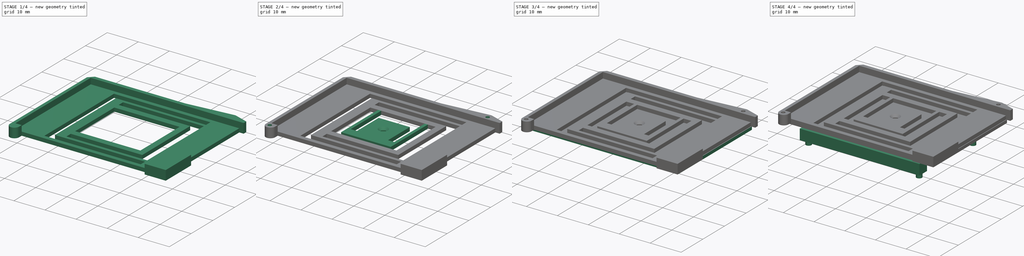
[diagram: build sequence overview — one tinted view per stage of 4, left to right]
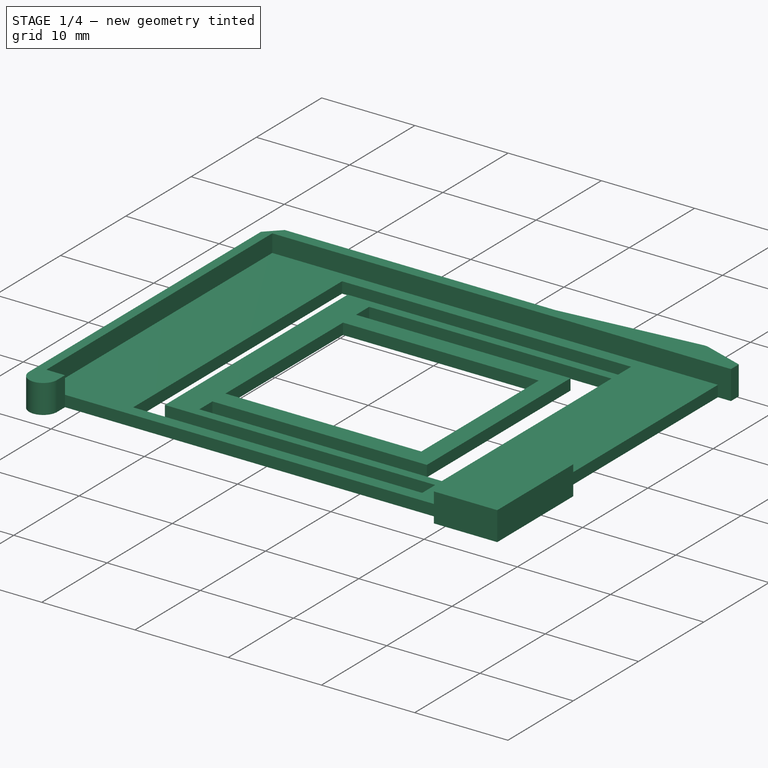
[diagram: stage 1 of 4 — iso view after this stage's code; geometry added in this stage tinted green]
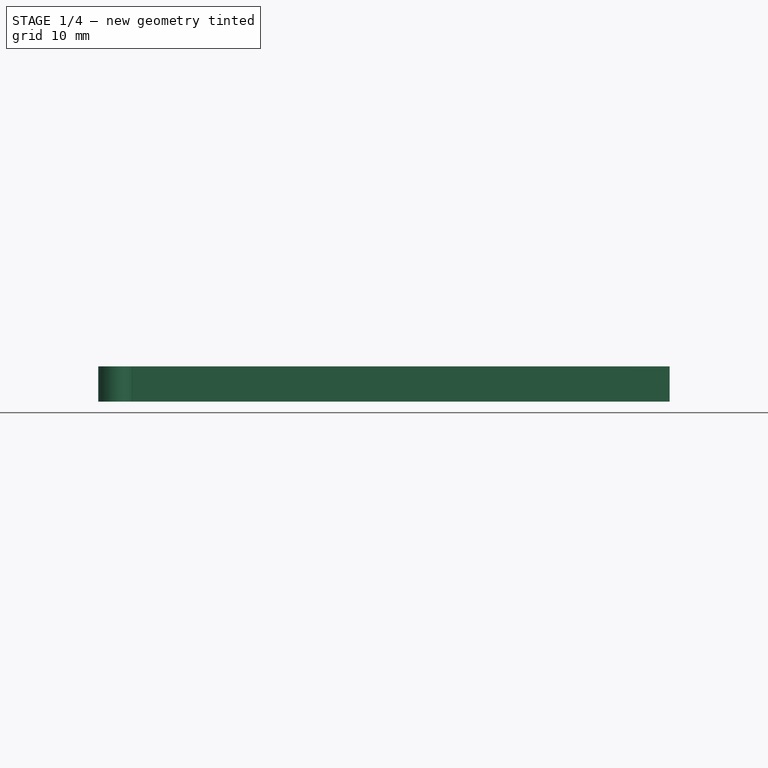
[diagram: stage 1 of 4 — front view after this stage's code; geometry added in this stage tinted green]
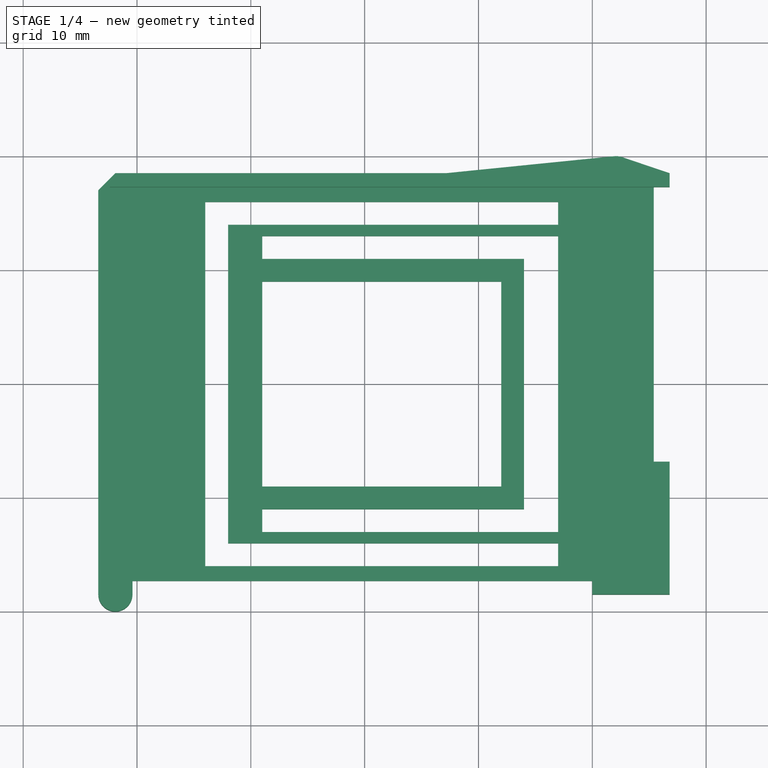
[diagram: stage 1 of 4 — top view after this stage's code; geometry added in this stage tinted green]
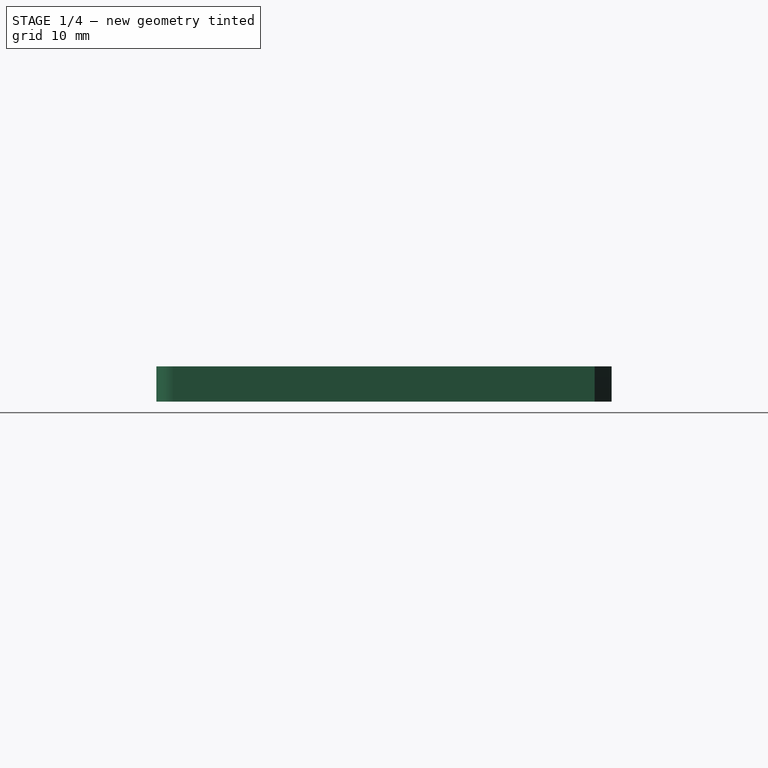
[diagram: stage 1 of 4 — right view after this stage's code; geometry added in this stage tinted green]
FCSTD DOCUMENT  (FreeCAD 0.21R33668 +26 (Git))
Label: PLASTIC-TEK1-DISPLAY-INTERFACE_v4
License: All rights reserved
LicenseURL: https://en.wikipedia.org/wiki/All_rights_reserved
objects: Sketcher::SketchObject×15, PartDesign::Pad×10, PartDesign::Plane×3, PartDesign::Pocket×3, PartDesign::Body×3, PartDesign::Hole×1
note: 49 computed .brp shape members not serialized (recipe doc carries the construction recipe); baked Part::Feature solids carry a one-line shape summary decoded from their .brp

FEATURE [PartDesign::Plane] DatumPlane002
  AttachmentOffset = pos=(0,0,5.9) rot=(0,0,1;0rad)
  Length = 61.9784
  MapMode = 5
  Placement = pos=(0,0,5.9) rot=(0,0,1;0rad)
  ResizeMode = 0
  Support = -> [XY_Plane001]
  Width = 60.1784
FEATURE [Sketcher::SketchObject] Sketch005
  FullyConstrained = true
  MapMode = 5
  Placement = pos=(0,0,5.9) rot=(0,0,1;0rad)
  Support = -> [DatumPlane002]
  sketch-geometry (6):
    g0: LineSegment StartX=-14 StartY=-16 StartZ=0 EndX=-14 EndY=16 EndZ=0
    g1: LineSegment StartX=-14 StartY=16 StartZ=0 EndX=17 EndY=16 EndZ=0
    g2: LineSegment StartX=17 StartY=16 StartZ=0 EndX=17 EndY=-16 EndZ=0
    g3: LineSegment StartX=17 StartY=-16 StartZ=0 EndX=-14 EndY=-16 EndZ=0
    g4: LineSegment StartX=-14 StartY=0 StartZ=0 EndX=17 EndY=0 EndZ=0
    g5: GeomPoint X=1.5 Y=0 Z=0
  constraints (16):
    c: Coincident(g0,g1)
    c: Coincident(g1,g2)
    c: Coincident(g2,g3)
    c: Coincident(g3,g0)
    c: Horizontal(g1)
    c: Horizontal(g3)
    c: Vertical(g0)
    c: DistanceX(g1,g1) = 31
    c: DistanceY(g2,g2) = 32
    c: Symmetric(g1,g2,g-1)
    c: PointOnObject(g4,g0)
    c: PointOnObject(g4,g2)
    c: Horizontal(g4)
    c: PointOnObject(g4,g-1)
    c: Symmetric(g4,g4,g5)
    c: DistanceX(g-1,g5) = 1.5
FEATURE [Sketcher::SketchObject] Sketch007
  FullyConstrained = true
  MapMode = 5
  Placement = pos=(0,0,5.9) rot=(0,0,1;0rad)
  Support = -> [DatumPlane002]
  sketch-geometry (10):
    g0: LineSegment StartX=-22.4 StartY=-17.3 StartZ=0 EndX=-22.4 EndY=17.3 EndZ=0
    g1: LineSegment StartX=-22.4 StartY=17.3 StartZ=0 EndX=25.4 EndY=17.3 EndZ=0
    g2: LineSegment StartX=25.4 StartY=17.3 StartZ=0 EndX=25.4 EndY=-17.3 EndZ=0
    g3: LineSegment StartX=25.4 StartY=-17.3 StartZ=0 EndX=-22.4 EndY=-17.3 EndZ=0
    g4: GeomPoint X=1.5 Y=0 Z=0
    g5: LineSegment StartX=-20.4 StartY=-15.3 StartZ=0 EndX=-20.4 EndY=15.3 EndZ=0
    g6: LineSegment StartX=-20.4 StartY=15.3 StartZ=0 EndX=20.4 EndY=15.3 EndZ=0
    g7: LineSegment StartX=20.4 StartY=15.3 StartZ=0 EndX=20.4 EndY=-15.3 EndZ=0
    g8: LineSegment StartX=20.4 StartY=-15.3 StartZ=0 EndX=-20.4 EndY=-15.3 EndZ=0
    g9: GeomPoint X=0 Y=0 Z=0
  constraints (25):
    c: Coincident(g0,g1)
    c: Coincident(g1,g2)
    c: Coincident(g2,g3)
    c: Coincident(g3,g0)
    c: Horizontal(g1)
    c: Horizontal(g3)
    c: Vertical(g0)
    c: Vertical(g2)
    c: Symmetric(g1,g0,g4)
    c: PointOnObject(g4,g-1)
    c: DistanceY(g0,g0) = 34.6
    c: Coincident(g5,g6)
    c: Coincident(g6,g7)
    c: Coincident(g7,g8)
    c: Coincident(g8,g5)
    c: Horizontal(g6)
    c: Horizontal(g8)
    c: Vertical(g5)
    c: Vertical(g7)
    c: Symmetric(g6,g5,g9)
    c: DistanceX(g6,g6) = 40.8
    c: DistanceY(g7,g7) = 30.6
    c: Coincident(g9,g-1)
    c: DistanceX(g0,g9) = 22.4
    c: DistanceX(g9,g2) = 25.4
FEATURE [PartDesign::Pad] Pad005
  Direction = (0,0,1)
  Length = 1.2
  Length2 = 10
  Placement = pos=(0,0,5.9) rot=(0,0,1;0rad)
  Profile = -> Sketch007
  ReferenceAxis = -> Sketch007 [N_Axis]
  Type = 0
FEATURE [Sketcher::SketchObject] Sketch008
  FullyConstrained = true
  MapMode = 5
  Placement = pos=(0,0,5.9) rot=(0,0,1;0rad)
  Support = -> [DatumPlane002]
  sketch-geometry (39):
    g0: LineSegment StartX=-22.4 StartY=-17.3 StartZ=0 EndX=-22.4 EndY=17.3 EndZ=0
    g1: LineSegment StartX=-22.4 StartY=17.3 StartZ=0 EndX=-17.7 EndY=17.3 EndZ=0
    g2: GeomPoint X=1.5 Y=0 Z=0
    g3: LineSegment StartX=-23.4 StartY=-18.5 StartZ=0 EndX=-23.4 EndY=17 EndZ=0
    g4: LineSegment StartX=-21.9 StartY=18.5 StartZ=0 EndX=7.15 EndY=18.5 EndZ=0
    g5: LineSegment StartX=26.8 StartY=18.5 StartZ=0 EndX=26.8 EndY=17.3 EndZ=0
    g6: GeomPoint X=1.5 Y=0 Z=0
    g7: Circle CenterX=22.1 CenterY=18.5 CenterZ=0 NormalX=0 NormalY=0 NormalZ=1 AngleXU=0 Radius=0.75
    g8: LineSegment StartX=21.9495 StartY=19.9924 StartZ=0 EndX=7.15 EndY=18.5 EndZ=0
    g9: LineSegment StartX=22.5787 StartY=19.9216 StartZ=0 EndX=26.8 EndY=18.5 EndZ=0
    g10: ArcOfCircle CenterX=22.1 CenterY=18.5 CenterZ=0 NormalX=0 NormalY=0 NormalZ=1 AngleXU=0 Radius=1.5 StartAngle=1.24597 EndAngle=1.6713
    g11: LineSegment StartX=-22.4 StartY=-17.3 StartZ=0 EndX=-21.7 EndY=-17.3 EndZ=0
    g12: LineSegment StartX=-23.4 StartY=17 StartZ=0 EndX=-21.9 EndY=18.5 EndZ=0
    g13: LineSegment StartX=20 StartY=-17.3 StartZ=0 EndX=20 EndY=-18.5 EndZ=0
    g14: LineSegment StartX=20 StartY=-18.5 StartZ=0 EndX=26.8 EndY=-18.5 EndZ=0
    g15: LineSegment StartX=20 StartY=-17.3 StartZ=0 EndX=20 EndY=-18.5 EndZ=0
    g16: LineSegment StartX=20 StartY=-17.3 StartZ=0 EndX=21.3 EndY=-17.3 EndZ=0
    g17: ArcOfCircle CenterX=-17.5 CenterY=17.3 CenterZ=0 NormalX=0 NormalY=0 NormalZ=1 AngleXU=0 Radius=0.2 StartAngle=3.14159 EndAngle=6.28319
    g18: ArcOfCircle CenterX=17.5 CenterY=17.3 CenterZ=0 NormalX=0 NormalY=0 NormalZ=1 AngleXU=0 Radius=0.2 StartAngle=3.14159 EndAngle=6.28319
    g19: ArcOfCircle CenterX=21.5 CenterY=-17.3 CenterZ=0 NormalX=0 NormalY=0 NormalZ=1 AngleXU=0 Radius=0.2 StartAngle=3.8e-15 EndAngle=3.14159
    g20: ArcOfCircle CenterX=-21.5 CenterY=-17.3 CenterZ=0 NormalX=0 NormalY=0 NormalZ=1 AngleXU=0 Radius=0.2 StartAngle=4.4e-15 EndAngle=3.14159
    g21: LineSegment StartX=21.7 StartY=-17.3 StartZ=0 EndX=25.4 EndY=-17.3 EndZ=0
    g22: LineSegment StartX=-21.3 StartY=-17.3 StartZ=0 EndX=-20.4 EndY=-17.3 EndZ=0
    g23: LineSegment StartX=-17.3 StartY=17.3 StartZ=0 EndX=17.3 EndY=17.3 EndZ=0
    g24: LineSegment StartX=17.7 StartY=17.3 StartZ=0 EndX=25.4 EndY=17.3 EndZ=0
    g25: Circle CenterX=-21.9 CenterY=-18.5 CenterZ=0 NormalX=0 NormalY=0 NormalZ=1 AngleXU=0 Radius=0.75
    g26: ArcOfCircle CenterX=-21.9 CenterY=-18.5 CenterZ=0 NormalX=0 NormalY=0 NormalZ=1 AngleXU=0 Radius=1.5 StartAngle=3.14159 EndAngle=6.28319
    g27: LineSegment StartX=-20.4 StartY=-18.5 StartZ=0 EndX=-20.4 EndY=-17.3 EndZ=0
    g28: LineSegment StartX=-21.7 StartY=-17.3 StartZ=0 EndX=-21.3 EndY=-17.3 EndZ=0
    g29: LineSegment StartX=-17.7 StartY=17.3 StartZ=0 EndX=-17.3 EndY=17.3 EndZ=0
    g30: LineSegment StartX=17.3 StartY=17.3 StartZ=0 EndX=17.7 EndY=17.3 EndZ=0
    g31: LineSegment StartX=21.3 StartY=-17.3 StartZ=0 EndX=21.7 EndY=-17.3 EndZ=0
    g32: LineSegment StartX=-22.4 StartY=0 StartZ=0 EndX=25.4 EndY=0 EndZ=0
    g33: LineSegment StartX=25.4 StartY=17.3 StartZ=0 EndX=26.8 EndY=17.3 EndZ=0
    g34: LineSegment StartX=25.4 StartY=17.3 StartZ=0 EndX=25.4 EndY=-17.3 EndZ=0
    g35: LineSegment StartX=26.8 StartY=17.3 StartZ=0 EndX=26.8 EndY=-18.5 EndZ=0
    g36: LineSegment StartX=25.4 StartY=-17.3 StartZ=0 EndX=25.4 EndY=-6.85 EndZ=0
    g37: LineSegment StartX=25.4 StartY=-6.85 StartZ=0 EndX=26.8 EndY=-6.85 EndZ=0
    g38: LineSegment StartX=26.8 StartY=-6.85 StartZ=0 EndX=26.8 EndY=-18.5 EndZ=0
  constraints (104):
    c: Coincident(g0,g1)
    c: Horizontal(g1)
    c: Vertical(g0)
    c: Symmetric(g24,g0,g2)
    c: PointOnObject(g2,g-1)
    c: DistanceX(g0,g-1) = 22.4
    c: DistanceY(g0,g0) = 34.6
    c: DistanceX(g1,g24) = 47.8
    c: Horizontal(g4)
    c: Vertical(g3)
    c: Coincident(g6,g2)
    c: DistanceX(g3,g0) = 1
    c: DistanceY(g3,g0) = 1.2
    c: DistanceY(g14,g5) = 37
    c: Symmetric(g5,g14,g-1)
    c: DistanceX(g-1,g7) = 22.1
    c: DistanceY(g24,g7) = 1.2
    c: Coincident(g4,g8)
    c: Coincident(g9,g5)
    c: Tangent(g10,g9) = 1.5708
    c: Tangent(g10,g8) = -1.5708
    c: Coincident(g10,g7)
    c: Coincident(g11,g0)
    c: Horizontal(g11)
    c: Coincident(g3,g12)
    c: DistanceX(g3,g4) = 30.55
    c: DistanceX(g3,g5) = 50.2
    c: Coincident(g4,g12)
    c: Angle(g12,g4) = 2.35619
    c: DistanceX(g3,g4) = 1.5
    c: DistanceX(g-1,g13) = 20
    c: Vertical(g13)
    c: Coincident(g14,g13)
    c: Coincident(g15,g13)
    c: Coincident(g15,g14)
    c: Coincident(g16,g13)
    c: Horizontal(g16)
    c: PointOnObject(g17,g1)
    c: PointOnObject(g19,g16)
    c: Equal(g20,g19)
    c: Equal(g19,g18)
    c: Equal(g18,g17)
    c: Diameter(g17) = 0.4
    c: Symmetric(g17,g18,g-2)
    c: DistanceX(g17,g18) = 35
    c: Symmetric(g20,g19,g-2)
    c: DistanceX(g20,g19) = 43
    c: Coincident(g16,g19)
    c: Coincident(g21,g19)
    c: Coincident(g11,g20)
    c: Coincident(g22,g20)
    c: Coincident(g1,g17)
    c: Coincident(g23,g17)
    c: Coincident(g23,g18)
    c: Coincident(g24,g18)
    c: Horizontal(g22)
    c: Horizontal(g20,g11)
    c: Horizontal(g21)
    c: Horizontal(g24)
    c: Horizontal(g18,g18)
    c: Horizontal(g23)
    c: Horizontal(g18,g18)
    c: Horizontal(g16,g19)
    c: Coincident(g26,g25)
    c: Equal(g25,g7)
    c: Equal(g26,g10)
    c: Diameter(g26) = 3
    c: Diameter(g25) = 1.5
    c: Tangent(g26,g3) = 1.5708
    c: Vertical(g27)
    c: Tangent(g26,g27) = -1.5708
    c: Coincident(g22,g27)
    c: Horizontal(g20,g20)
    c: Horizontal(g14)
    c: DistanceY(g22,g3) = 34.3
    c: Coincident(g28,g11)
    c: Coincident(g28,g22)
    c: Coincident(g29,g1)
    c: Coincident(g29,g17)
    c: Coincident(g30,g18)
    c: Coincident(g30,g18)
    c: Coincident(g31,g16)
    c: Coincident(g31,g19)
    c: PointOnObject(g32,g0)
    c: Horizontal(g32)
    c: PointOnObject(g32,g-1)
    c: Coincident(g33,g24)
    c: Horizontal(g33)
    c: Coincident(g5,g33)
    c: Coincident(g34,g24)
    c: Coincident(g34,g21)
    c: Vertical(g34)
    c: Coincident(g35,g5)
    c: Vertical(g35)
    c: PointOnObject(g32,g34)
    c: Coincident(g36,g21)
    c: PointOnObject(g36,g34)
    c: Coincident(g37,g36)
    c: PointOnObject(g37,g35)
    c: Horizontal(g37)
    c: Coincident(g38,g37)
    c: Coincident(g38,g14)
    c: DistanceY(g38,g38) = 11.65
    c: Coincident(g35,g14)
FEATURE [PartDesign::Pad] Pad006
  BaseFeature = -> Pad005
  Direction = (0,0,1)
  Length = 3.1
  Length2 = 10
  Placement = pos=(0,0,5.9) rot=(0,0,1;0rad)
  Profile = -> Sketch008
  ReferenceAxis = -> Sketch008 [N_Axis]
  Refine = true
  Type = 0
FEATURE [Sketcher::SketchObject] Sketch009
  FullyConstrained = true
  MapMode = 5
  Placement = pos=(0,0,5.9) rot=(0,0,1;0rad)
  Support = -> [DatumPlane002]
  sketch-geometry (13):
    g0: LineSegment StartX=19.6 StartY=-3.15 StartZ=0 EndX=19.6 EndY=10.8 EndZ=0
    g1: LineSegment StartX=22.1 StartY=13.3 StartZ=0 EndX=26.6 EndY=13.3 EndZ=0
    g2: LineSegment StartX=26.6 StartY=13.3 StartZ=0 EndX=26.6 EndY=-5.65 EndZ=0
    g3: LineSegment StartX=26.6 StartY=-5.65 StartZ=0 EndX=22.1 EndY=-5.65 EndZ=0
    g4: GeomPoint X=26.6 Y=17.3 Z=0
    g5: ArcOfCircle CenterX=22.1 CenterY=-3.15 CenterZ=0 NormalX=0 NormalY=0 NormalZ=1 AngleXU=0 Radius=2.5 StartAngle=3.14159 EndAngle=4.71239
    g6: ArcOfCircle CenterX=22.1 CenterY=10.8 CenterZ=0 NormalX=0 NormalY=0 NormalZ=1 AngleXU=0 Radius=2.5 StartAngle=1.5708 EndAngle=3.14159
    g7: LineSegment StartX=-23.6 StartY=9.475 StartZ=0 EndX=-19.1 EndY=9.475 EndZ=0
    g8: LineSegment StartX=-16.6 StartY=6.975 StartZ=0 EndX=-16.6 EndY=-6.975 EndZ=0
    g9: LineSegment StartX=-19.1 StartY=-9.475 StartZ=0 EndX=-23.6 EndY=-9.475 EndZ=0
    g10: LineSegment StartX=-23.6 StartY=-9.475 StartZ=0 EndX=-23.6 EndY=9.475 EndZ=0
    g11: ArcOfCircle CenterX=-19.1 CenterY=6.975 CenterZ=0 NormalX=0 NormalY=0 NormalZ=1 AngleXU=0 Radius=2.5 StartAngle=0 EndAngle=1.5708
    g12: ArcOfCircle CenterX=-19.1 CenterY=-6.975 CenterZ=0 NormalX=0 NormalY=0 NormalZ=1 AngleXU=0 Radius=2.5 StartAngle=4.71239 EndAngle=6.28319
  constraints (33):
    c: Coincident(g1,g2)
    c: Coincident(g2,g3)
    c: Horizontal(g1)
    c: Horizontal(g3)
    c: Vertical(g0)
    c: Vertical(g2)
    c: DistanceX(g-1,g4) = 26.6
    c: DistanceY(g-1,g4) = 17.3
    c: DistanceY(g1,g4) = 4
    c: Vertical(g1,g4)
    c: Tangent(g0,g5) = 1.5708
    c: Tangent(g3,g5) = 1.5708
    c: Tangent(g0,g6) = 1.5708
    c: Tangent(g1,g6) = 1.5708
    c: DistanceY(g3,g-1) = 5.65
    c: Equal(g5,g6)
    c: DistanceX(g0,g2) = 7
    c: Diameter(g5) = 5
    c: Coincident(g9,g10)
    c: Coincident(g10,g7)
    c: Horizontal(g7)
    c: Horizontal(g9)
    c: Vertical(g8)
    c: DistanceX(g9,g-1) = 23.6
    c: Symmetric(g9,g7,g-1)
    c: Tangent(g7,g11) = 1.5708
    c: Tangent(g8,g11) = 1.5708
    c: Tangent(g8,g12) = 1.5708
    c: Tangent(g9,g12) = 1.5708
    c: Equal(g11,g12)
    c: Diameter(g11) = 5
    c: DistanceX(g7,g8) = 7
    c: DistanceY(g10,g10) = 18.95
FEATURE [PartDesign::Pocket] Pocket002
  BaseFeature = -> Pad006
  Direction = (0,0,-1)
  Length = 5
  Length2 = 5
  Placement = pos=(0,0,5.9) rot=(0,0,1;0rad)
  Profile = -> Sketch005
  ReferenceAxis = -> Sketch005 [N_Axis]
  Reversed = true
  Type = 0
FEATURE [PartDesign::Plane] DatumPlane
  AttachmentOffset = pos=(0,0,7.1) rot=(0,0,1;0rad)
  Length = 61.9784
  MapMode = 5
  Placement = pos=(0,0,7.1) rot=(0,0,1;0rad)
  ResizeMode = 0
  Support = -> [XY_Plane001]
  Width = 60.1784
FEATURE [Sketcher::SketchObject] Sketch013
  FullyConstrained = true
  MapMode = 5
  Placement = pos=(0,0,7.1) rot=(0,0,1;0rad)
  Support = -> [DatumPlane]
  sketch-geometry (4):
    g0: Circle CenterX=22.1 CenterY=18.5 CenterZ=0 NormalX=0 NormalY=0 NormalZ=1 AngleXU=0 Radius=0.6
    g1: Circle CenterX=-22.1 CenterY=-18.5 CenterZ=0 NormalX=0 NormalY=0 NormalZ=1 AngleXU=0 Radius=0.6
    g2: LineSegment StartX=-22.1 StartY=-18.5 StartZ=0 EndX=-22.1 EndY=0 EndZ=0
    g3: LineSegment StartX=22.1 StartY=18.5 StartZ=0 EndX=22.1 EndY=0 EndZ=0
  constraints (12):
    c: Diameter(g0) = 1.2
    c: Equal(g1,g0)
    c: Coincident(g2,g1)
    c: PointOnObject(g2,g-1)
    c: Vertical(g2)
    c: Coincident(g3,g0)
    c: PointOnObject(g3,g-1)
    c: Vertical(g3)
    c: Equal(g2,g3)
    c: DistanceY(g3,g3) = 18.5
    c: DistanceX(g-1,g3) = 22.1
    c: DistanceX(g2,g-1) = 22.1
FEATURE [Sketcher::SketchObject] Sketch020
  FullyConstrained = true
  MapMode = 5
  Placement = pos=(0,0,5.9) rot=(0,0,1;0rad)
  Support = -> [DatumPlane002]
  sketch-geometry (13):
    g0: LineSegment StartX=-3.5 StartY=-5 StartZ=0 EndX=-3.5 EndY=5 EndZ=0
    g1: LineSegment StartX=-3.5 StartY=5 StartZ=0 EndX=6.5 EndY=5 EndZ=0
    g2: LineSegment StartX=6.5 StartY=5 StartZ=0 EndX=6.5 EndY=-5 EndZ=0
    g3: LineSegment StartX=8.5 StartY=-5 StartZ=0 EndX=6.5 EndY=-5 EndZ=0
    g4: LineSegment StartX=-5.5 StartY=-5 StartZ=0 EndX=-3.5 EndY=-5 EndZ=0
    g5: LineSegment StartX=-6.5 StartY=10 StartZ=0 EndX=-5.5 EndY=10 EndZ=0
    g6: LineSegment StartX=-5.5 StartY=10 StartZ=0 EndX=-5.5 EndY=-5 EndZ=0
    g7: LineSegment StartX=-6.5 StartY=-8 StartZ=0 EndX=-6.5 EndY=10 EndZ=0
    g8: LineSegment StartX=9.5 StartY=10 StartZ=0 EndX=8.5 EndY=10 EndZ=0
    g9: LineSegment StartX=8.5 StartY=10 StartZ=0 EndX=8.5 EndY=-5 EndZ=0
    g10: LineSegment StartX=9.5 StartY=-8 StartZ=0 EndX=9.5 EndY=10 EndZ=0
    g11: LineSegment StartX=-6.5 StartY=-8 StartZ=0 EndX=9.5 EndY=-8 EndZ=0
    g12: LineSegment StartX=1.5 StartY=-8 StartZ=0 EndX=1.5 EndY=10 EndZ=0
  constraints (37):
    c: Coincident(g0,g1)
    c: Coincident(g1,g2)
    c: Vertical(g0)
    c: Horizontal(g3)
    c: Horizontal(g4)
    c: Coincident(g5,g6)
    c: Coincident(g7,g5)
    c: Horizontal(g5)
    c: Vertical(g6)
    c: Vertical(g7)
    c: Coincident(g8,g9)
    c: Coincident(g10,g8)
    c: Horizontal(g8)
    c: Vertical(g9)
    c: Vertical(g10)
    c: Equal(g5,g8)
    c: DistanceX(g8,g8) = 1
    c: Coincident(g3,g9)
    c: Coincident(g3,g2)
    c: Coincident(g4,g6)
    c: Coincident(g4,g0)
    c: Coincident(g11,g7)
    c: Coincident(g11,g10)
    c: Horizontal(g11)
    c: DistanceX(g1,g1) = 10
    c: DistanceY(g10,g3) = 3
    c: Horizontal(g2,g0)
    c: DistanceY(g2,g2) = 10
    c: Symmetric(g2,g1,g-1)
    c: DistanceX(g3,g3) = 2
    c: DistanceY(g10,g10) = 18
    c: Horizontal(g12,g8)
    c: Symmetric(g5,g8,g12)
    c: Symmetric(g7,g10,g12)
    c: Equal(g4,g3)
    c: DistanceX(g-1,g12) = 1.5
    c: Horizontal(g1)
FEATURE [Sketcher::SketchObject] Sketch
  FullyConstrained = true
  MapMode = 5
  Support = -> [XY_Plane002]
  sketch-geometry (4):
    g0: Circle CenterX=-18 CenterY=12.5 CenterZ=0 NormalX=0 NormalY=0 NormalZ=1 AngleXU=0 Radius=0.9
    g1: Circle CenterX=-18 CenterY=-12.5 CenterZ=0 NormalX=0 NormalY=0 NormalZ=1 AngleXU=0 Radius=0.9
    g2: Circle CenterX=18 CenterY=-12.5 CenterZ=0 NormalX=0 NormalY=0 NormalZ=1 AngleXU=0 Radius=0.9
    g3: Circle CenterX=18 CenterY=12.5 CenterZ=0 NormalX=0 NormalY=0 NormalZ=1 AngleXU=0 Radius=0.9
  constraints (10):
    c: Symmetric(g0,g1,g-1)
    c: Equal(g2,g1)
    c: Diameter(g0) = 1.8
    c: DistanceY(g1,g0) = 25
    c: DistanceX(g1,g2) = 36
    c: Symmetric(g1,g2,g-2)
    c: Equal(g0,g1)
    c: Horizontal(g3,g0)
    c: Vertical(g3,g2)
    c: Equal(g3,g0)
FEATURE [Sketcher::SketchObject] Sketch023
  FullyConstrained = true
  MapMode = 5
  Placement = pos=(0,0,5.9) rot=(0,0,1;0rad)
  Support = -> [DatumPlane002]
  sketch-geometry (25):
    g0: LineSegment StartX=-12 StartY=-14 StartZ=0 EndX=-12 EndY=14 EndZ=0
    g1: LineSegment StartX=-12 StartY=14 StartZ=0 EndX=-9 EndY=14 EndZ=0
    g2: LineSegment StartX=-9 StartY=-14 StartZ=0 EndX=-12 EndY=-14 EndZ=0
    g3: GeomPoint X=-10.5 Y=0 Z=0
    g4: LineSegment StartX=-9 StartY=-14 StartZ=0 EndX=17 EndY=-14 EndZ=0
    g5: LineSegment StartX=17 StartY=-14 StartZ=0 EndX=17 EndY=-13 EndZ=0
    g6: LineSegment StartX=17 StartY=-13 StartZ=0 EndX=-9 EndY=-13 EndZ=0
    g7: LineSegment StartX=-9 StartY=13 StartZ=0 EndX=17 EndY=13 EndZ=0
    g8: LineSegment StartX=17 StartY=13 StartZ=0 EndX=17 EndY=14 EndZ=0
    g9: LineSegment StartX=17 StartY=14 StartZ=0 EndX=-9 EndY=14 EndZ=0
    g10: LineSegment StartX=-9 StartY=-11 StartZ=0 EndX=14 EndY=-11 EndZ=0
    g11: LineSegment StartX=14 StartY=-11 StartZ=0 EndX=14 EndY=11 EndZ=0
    g12: LineSegment StartX=14 StartY=11 StartZ=0 EndX=-9 EndY=11 EndZ=0
    g13: LineSegment StartX=-9 StartY=9 StartZ=0 EndX=-9 EndY=-9 EndZ=0
    g14: LineSegment StartX=-9 StartY=-9 StartZ=0 EndX=12 EndY=-9 EndZ=0
    g15: LineSegment StartX=12 StartY=-9 StartZ=0 EndX=12 EndY=9 EndZ=0
    g16: LineSegment StartX=12 StartY=9 StartZ=0 EndX=-9 EndY=9 EndZ=0
    g17: LineSegment StartX=-14 StartY=-17.5 StartZ=0 EndX=-14 EndY=17.5 EndZ=0
    g18: LineSegment StartX=-14 StartY=17.5 StartZ=0 EndX=17 EndY=17.5 EndZ=0
    g19: LineSegment StartX=17 StartY=17.5 StartZ=0 EndX=17 EndY=-17.5 EndZ=0
    g20: LineSegment StartX=17 StartY=-17.5 StartZ=0 EndX=-14 EndY=-17.5 EndZ=0
    g21: LineSegment StartX=-9 StartY=-11 StartZ=0 EndX=-9 EndY=-13 EndZ=0
    g22: LineSegment StartX=-9 StartY=13 StartZ=0 EndX=-9 EndY=11 EndZ=0
    g23: LineSegment StartX=-9 StartY=0 StartZ=0 EndX=12 EndY=0 EndZ=0
    g24: GeomPoint X=1.5 Y=0 Z=0
  constraints (69):
    c: Coincident(g0,g1)
    c: Coincident(g2,g0)
    c: Horizontal(g1)
    c: Horizontal(g2)
    c: Vertical(g0)
    c: Symmetric(g1,g0,g3)
    c: PointOnObject(g3,g-1)
    c: Coincident(g4,g5)
    c: Coincident(g5,g6)
    c: Horizontal(g4)
    c: Horizontal(g6)
    c: Vertical(g5)
    c: Coincident(g7,g8)
    c: Coincident(g8,g9)
    c: Horizontal(g7)
    c: Horizontal(g9)
    c: Vertical(g8)
    c: Coincident(g10,g11)
    c: Coincident(g11,g12)
    c: Horizontal(g10)
    c: Horizontal(g12)
    c: Vertical(g13)
    c: Coincident(g14,g15)
    c: Coincident(g15,g16)
    c: Horizontal(g14)
    c: Horizontal(g16)
    c: DistanceX(g1,g1) = 3
    c: Coincident(g17,g18)
    c: Coincident(g18,g19)
    c: Coincident(g19,g20)
    c: Coincident(g20,g17)
    c: Horizontal(g18)
    c: Horizontal(g20)
    c: Vertical(g19)
    c: DistanceY(g17,g17) = 35
    c: DistanceX(g18,g18) = 31
    c: PointOnObject(g8,g19)
    c: PointOnObject(g4,g19)
    c: Equal(g5,g8)
    c: Coincident(g21,g10)
    c: Coincident(g22,g7)
    c: Symmetric(g15,g14,g-1)
    c: Symmetric(g10,g11,g-1)
    c: Coincident(g13,g16)
    c: Coincident(g13,g14)
    c: DistanceY(g8,g8) = 1
    c: Coincident(g4,g2)
    c: Coincident(g9,g1)
    c: Vertical(g10,g13)
    c: Coincident(g12,g22)
    c: Vertical(g22)
    c: Vertical(g13,g12)
    c: Vertical(g7,g1)
    c: Vertical(g21)
    c: Coincident(g21,g6)
    c: Vertical(g6,g2)
    c: DistanceY(g13,g13) = 18
    c: DistanceY(g13,g12) = 2
    c: DistanceX(g15,g11) = 2
    c: DistanceX(g16,g16) = 21
    c: DistanceX(g0,g4) = 29
    c: DistanceY(g11,g7) = 2
    c: PointOnObject(g23,g13)
    c: PointOnObject(g23,g15)
    c: Horizontal(g23)
    c: PointOnObject(g23,g-1)
    c: Symmetric(g23,g23,g24)
    c: DistanceX(g-1,g24) = 1.5
    c: Symmetric(g17,g17,g-1)
FEATURE [PartDesign::Pad] Pad
  BaseFeature = -> Pocket002
  Direction = (0,0,1)
  Length = 1.2
  Length2 = 10
  Placement = pos=(0,0,5.9) rot=(0,0,1;0rad)
  Profile = -> Sketch023
  ReferenceAxis = -> Sketch023 [N_Axis]
  Refine = true
  Type = 0
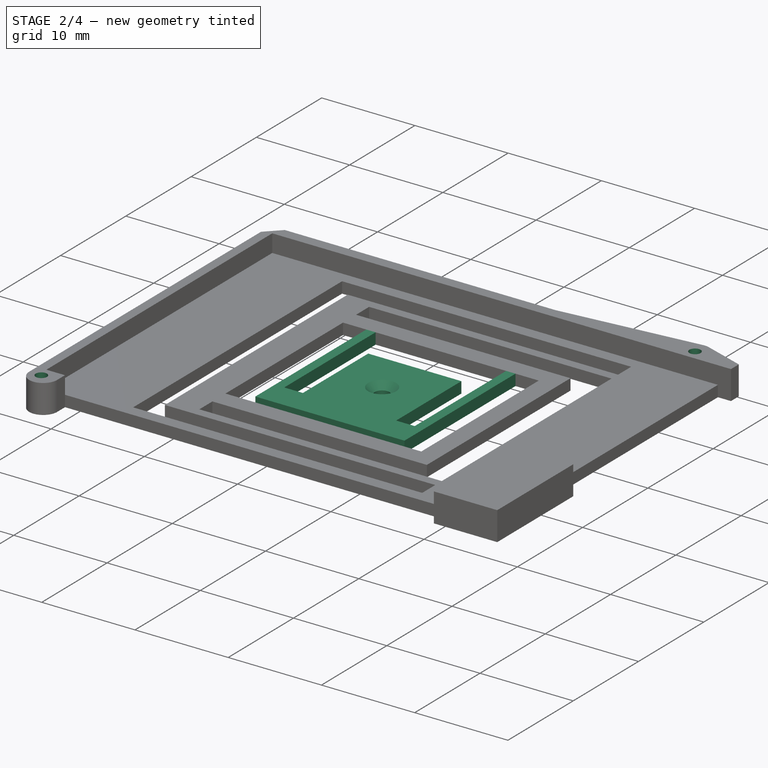
[diagram: stage 2 of 4 — iso view after this stage's code; geometry added in this stage tinted green]
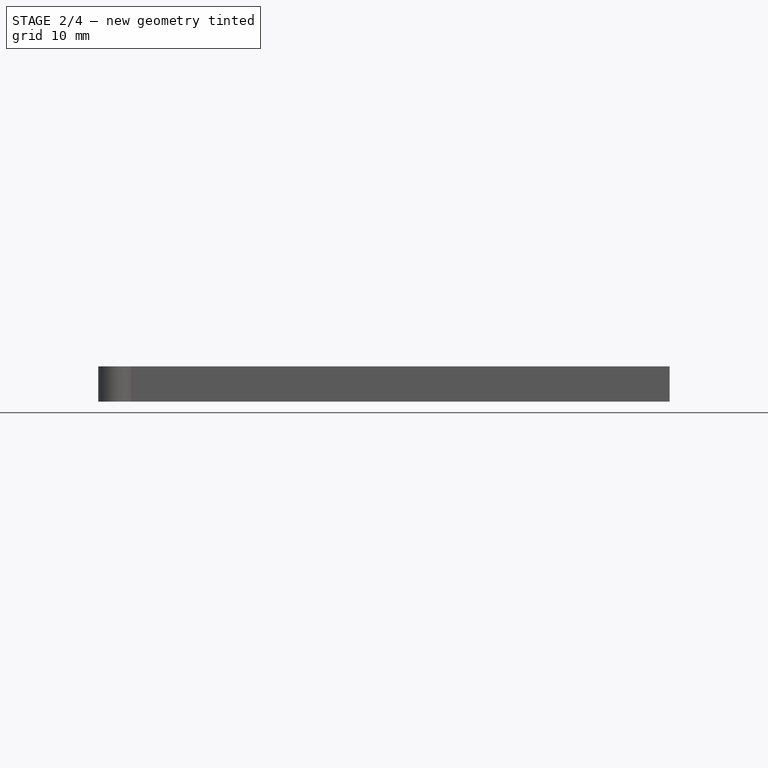
[diagram: stage 2 of 4 — front view after this stage's code; geometry added in this stage tinted green]
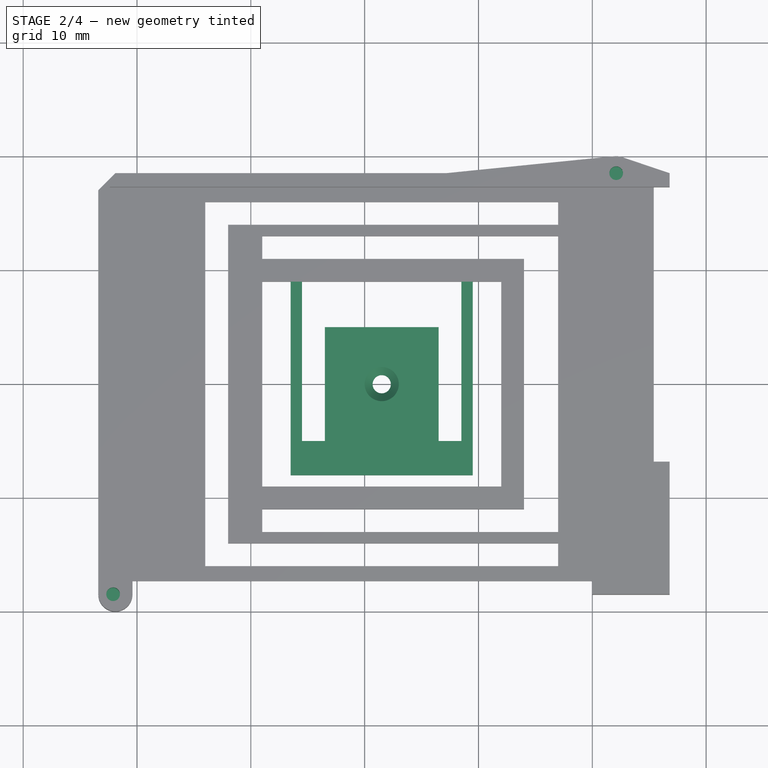
[diagram: stage 2 of 4 — top view after this stage's code; geometry added in this stage tinted green]
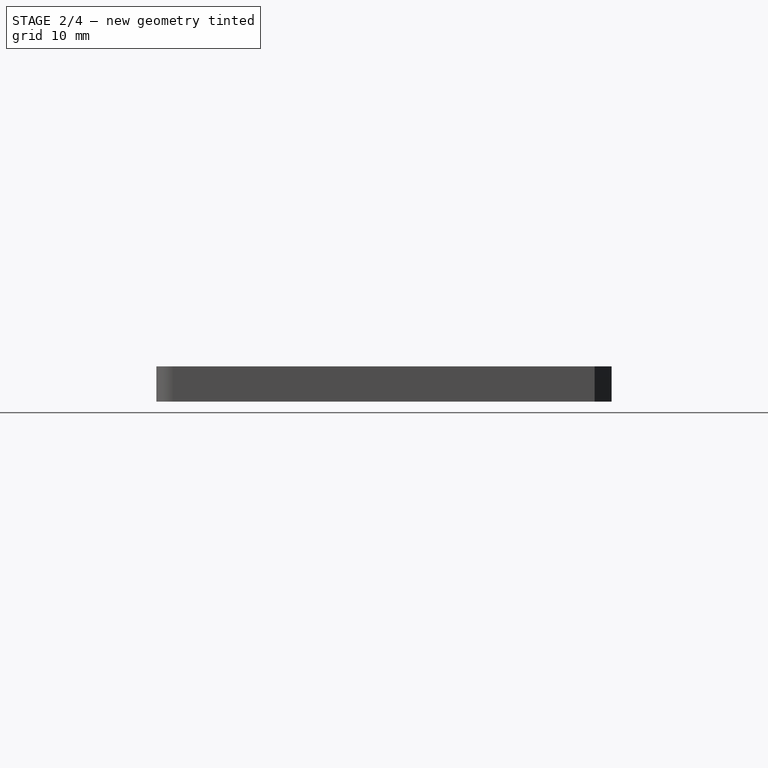
[diagram: stage 2 of 4 — right view after this stage's code; geometry added in this stage tinted green]
FEATURE [PartDesign::Pad] Pad015
  BaseFeature = -> Pad
  Direction = (0,0,1)
  Length = 1.2
  Length2 = 10
  Placement = pos=(0,0,5.9) rot=(0,0,1;0rad)
  Profile = -> Sketch020
  ReferenceAxis = -> Sketch020 [N_Axis]
  Refine = true
  Type = 0
FEATURE [PartDesign::Pocket] Pocket
  BaseFeature = -> Pad015
  Direction = (0,0,-1)
  Length = 5
  Length2 = 5
  Placement = pos=(0,0,5.9) rot=(0,0,1;0rad)
  Profile = -> Sketch013
  ReferenceAxis = -> Sketch013 [N_Axis]
  Reversed = true
  Type = 0
FEATURE [PartDesign::Body] Body  label="PLASTIC-TEK1-DISPLAY-INTERFACE_middle_part"
  Group = -> [Sketch036,Pad022,Sketch038,Pad023,Sketch039,Pad024,Sketch040,Pocket007]
  Origin = -> Origin
  Tip = -> Pocket007
FEATURE [PartDesign::Hole] Hole
  BaseFeature = -> Pocket
  CustomThreadClearance = 0
  Depth = 25
  DepthType = 0
  Diameter = 1.6
  DrillForDepth = false
  DrillPoint = 1
  DrillPointAngle = 118
  HoleCutCountersinkAngle = 90
  HoleCutCustomValues = false
  HoleCutDepth = 0
  HoleCutDiameter = 3
  HoleCutType = 2
  ModelThread = false
  Placement = pos=(0,0,5.9) rot=(0,0,1;0rad)
  Profile = -> Sketch034
  Tapered = false
  TaperedAngle = 90
  ThreadClass = 0
  ThreadDepth = 25
  ThreadDepthType = 0
  ThreadDirection = 0
  ThreadFit = 0
  ThreadSize = 0
  ThreadType = 0
  Threaded = false
  UseCustomThreadClearance = false
FEATURE [PartDesign::Body] Body001  label="PLASTIC-TEK1-DISPLAY-INTERFACE_top_part"
  Group = -> [DatumPlane002,Sketch005,Sketch007,Pad005,Sketch008,Pad006,Sketch009,Pocket002,Pad,Sketch023,DatumPlane,Sketch013,Sketch020,Pad015,Pocket,Sketch034,Hole]
  Origin = -> Origin001
  Tip = -> Hole
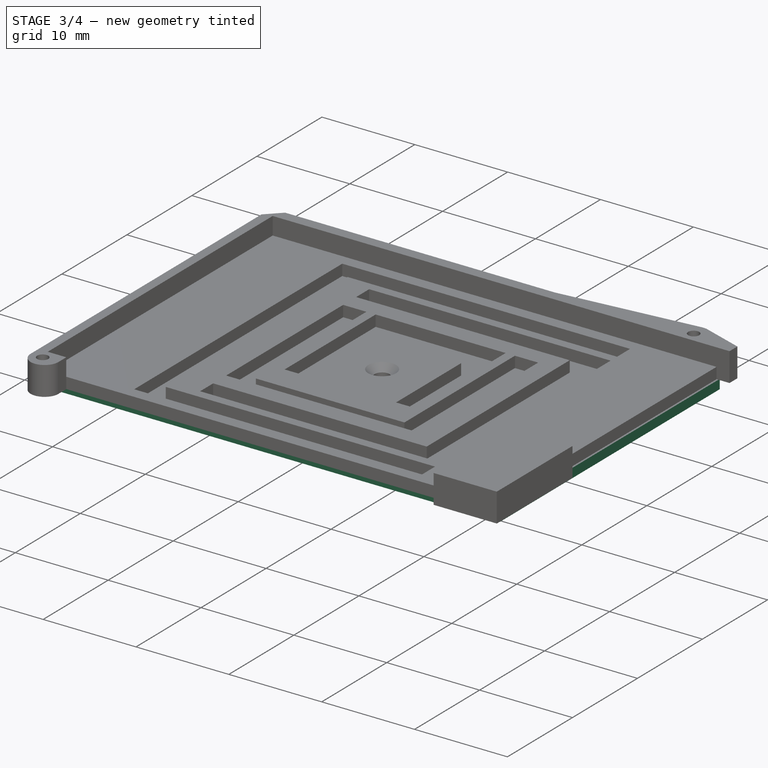
[diagram: stage 3 of 4 — iso view after this stage's code; geometry added in this stage tinted green]
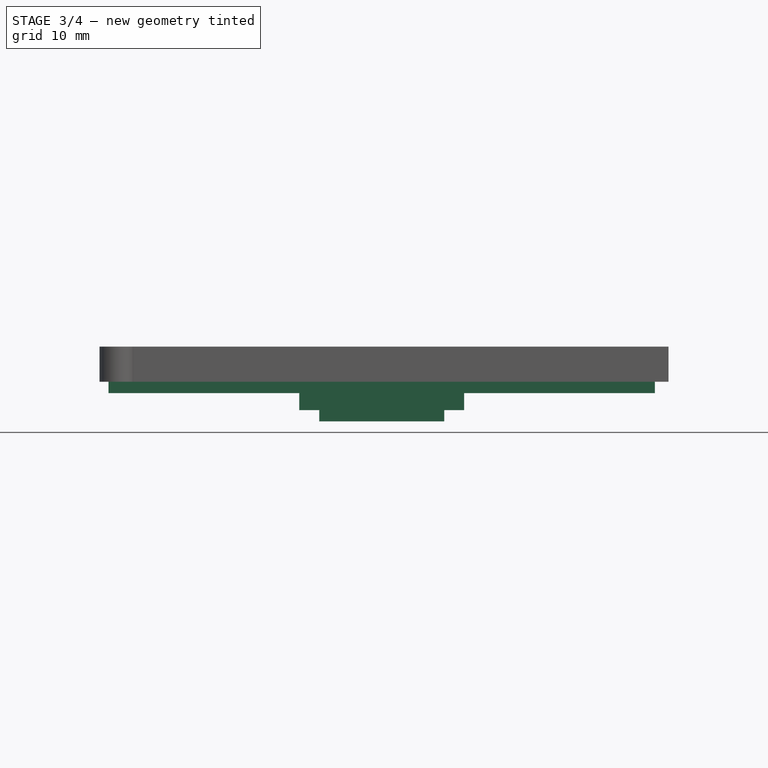
[diagram: stage 3 of 4 — front view after this stage's code; geometry added in this stage tinted green]
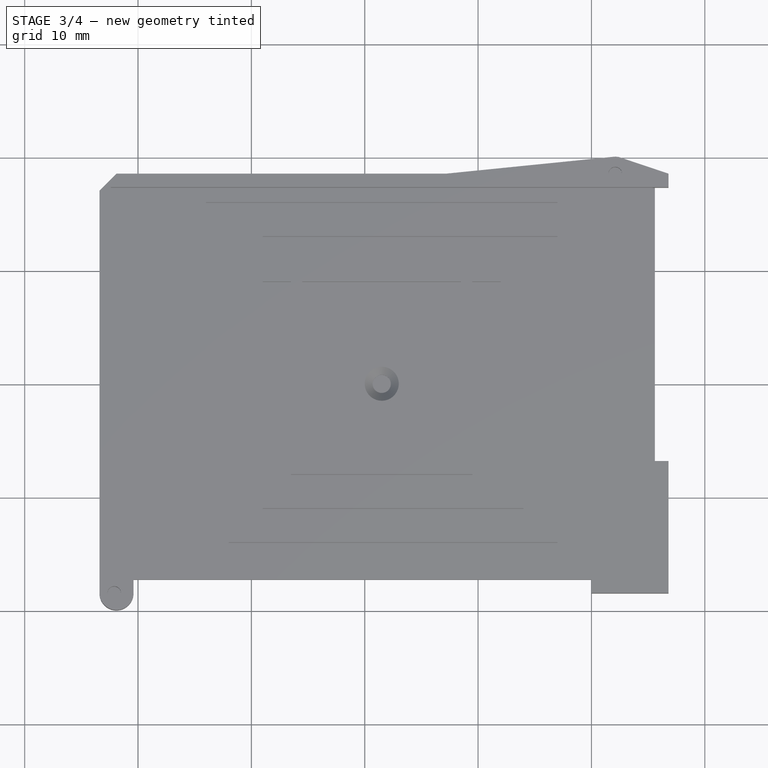
[diagram: stage 3 of 4 — top view after this stage's code; geometry added in this stage tinted green]
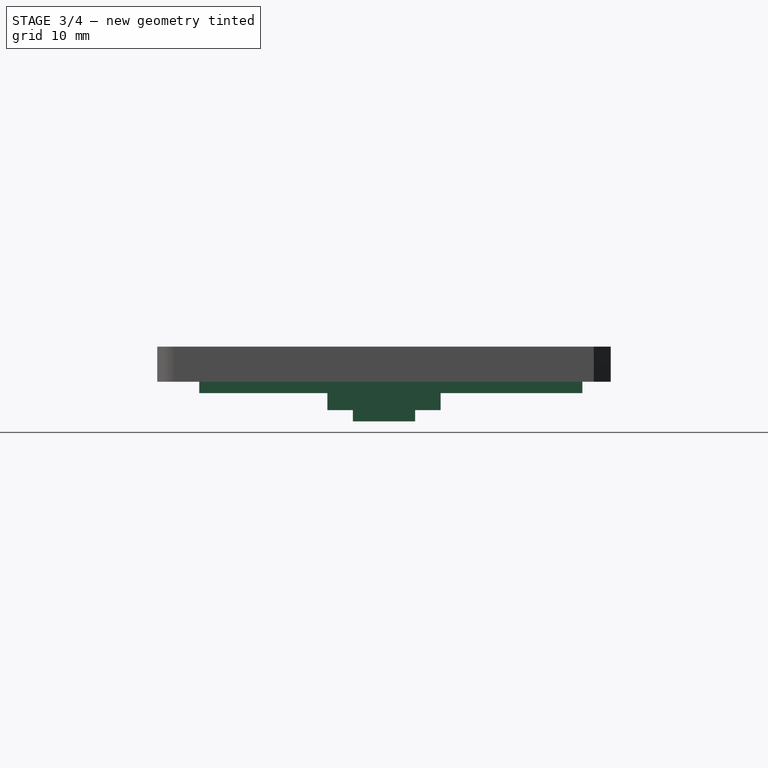
[diagram: stage 3 of 4 — right view after this stage's code; geometry added in this stage tinted green]
FEATURE [PartDesign::Body] Body002  label="PLASTIC-TEK1-DISPLAY-INTERFACE_bottom_part"
  Group = -> [Sketch029,Pad019,Pad020,Sketch,DatumPlane003,Sketch037,Pad021]
  Origin = -> Origin002
  Tip = -> Pad021
FEATURE [PartDesign::Pad] Pad022
  Direction = (0,0,1)
  Length = 1
  Length2 = 10
  Placement = pos=(0,0,3.4) rot=(0,0,1;0rad)
  Profile = -> Sketch036
  ReferenceAxis = -> Sketch036 [N_Axis]
  Reversed = true
  Type = 0
FEATURE [Sketcher::SketchObject] Sketch038
  FullyConstrained = true
  MapMode = 5
  Placement = pos=(0,0,3.4) rot=(0,0,1;0rad)
  Support = -> [DatumPlane003]
  sketch-geometry (6):
    g0: LineSegment StartX=-5.77275 StartY=-5 StartZ=0 EndX=-5.77275 EndY=5 EndZ=0
    g1: LineSegment StartX=-5.77275 StartY=5 StartZ=0 EndX=8.77275 EndY=5 EndZ=0
    g2: LineSegment StartX=8.77275 StartY=5 StartZ=0 EndX=8.77275 EndY=-5 EndZ=0
    g3: LineSegment StartX=8.77275 StartY=-5 StartZ=0 EndX=-5.77275 EndY=-5 EndZ=0
    g4: LineSegment StartX=-5.77275 StartY=0 StartZ=0 EndX=8.77275 EndY=0 EndZ=0
    g5: GeomPoint X=1.5 Y=0 Z=0
  constraints (16):
    c: Coincident(g0,g1)
    c: Coincident(g1,g2)
    c: Coincident(g2,g3)
    c: Coincident(g3,g0)
    c: Horizontal(g1)
    c: Horizontal(g3)
    c: Vertical(g0)
    c: Vertical(g2)
    c: DistanceY(g2,g2) = 10
    c: DistanceX(g1,g1) = 14.5455
    c: PointOnObject(g4,g0)
    c: Horizontal(g4)
    c: Symmetric(g2,g1,g4)
    c: PointOnObject(g4,g-1)
    c: Symmetric(g4,g4,g5)
    c: DistanceX(g-1,g5) = 1.5
FEATURE [Sketcher::SketchObject] Sketch039
  FullyConstrained = true
  MapMode = 5
  Placement = pos=(0,0,5.9) rot=(0,0,1;0rad)
  Support = -> [DatumPlane002]
  sketch-geometry (5):
    g0: LineSegment StartX=-22.6 StartY=-16.3 StartZ=0 EndX=-22.6 EndY=17.5 EndZ=0
    g1: LineSegment StartX=-22.6 StartY=17.5 StartZ=0 EndX=25.6 EndY=17.5 EndZ=0
    g2: LineSegment StartX=25.6 StartY=17.5 StartZ=0 EndX=25.6 EndY=-16.3 EndZ=0
    g3: LineSegment StartX=25.6 StartY=-16.3 StartZ=0 EndX=-22.6 EndY=-16.3 EndZ=0
    g4: GeomPoint X=0 Y=0 Z=0
  constraints (13):
    c: Coincident(g1,g2)
    c: Coincident(g2,g3)
    c: Coincident(g3,g0)
    c: Horizontal(g1)
    c: Horizontal(g3)
    c: Vertical(g0)
    c: Vertical(g2)
    c: Coincident(g4,g-1)
    c: DistanceX(g0,g4) = 22.6
    c: DistanceX(g4,g2) = 25.6
    c: DistanceY(g2,g4) = 16.3
    c: DistanceY(g4,g1) = 17.5
    c: Coincident(g0,g1)
FEATURE [PartDesign::Pad] Pad023
  BaseFeature = -> Pad022
  Direction = (0,0,1)
  Length = 1.8
  Length2 = 10
  Placement = pos=(0,0,3.4) rot=(0,0,1;0rad)
  Profile = -> Sketch038
  ReferenceAxis = -> Sketch038 [N_Axis]
  Type = 0
FEATURE [PartDesign::Pad] Pad024
  BaseFeature = -> Pad023
  Direction = (0,0,1)
  Length = 1
  Length2 = 10
  Placement = pos=(0,0,3.4) rot=(0,0,1;0rad)
  Profile = -> Sketch039
  ReferenceAxis = -> Sketch039 [N_Axis]
  Reversed = true
  Type = 0
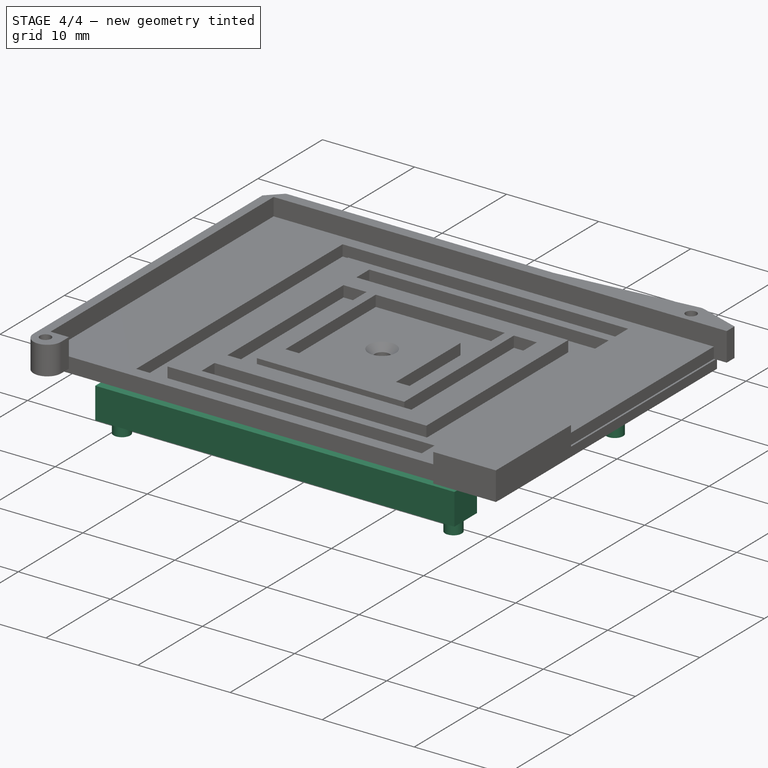
[diagram: stage 4 of 4 — iso view after this stage's code; geometry added in this stage tinted green]
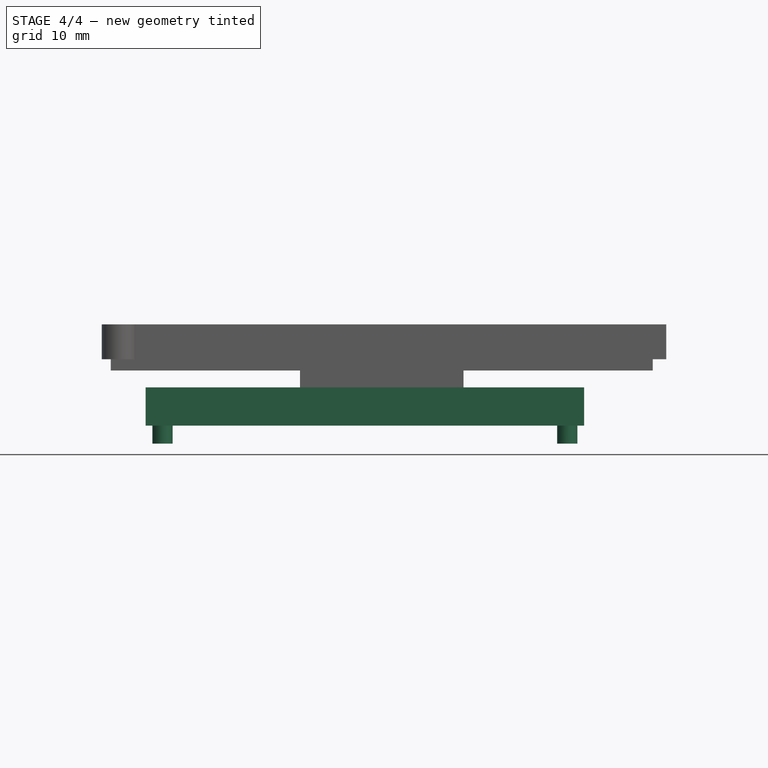
[diagram: stage 4 of 4 — front view after this stage's code; geometry added in this stage tinted green]
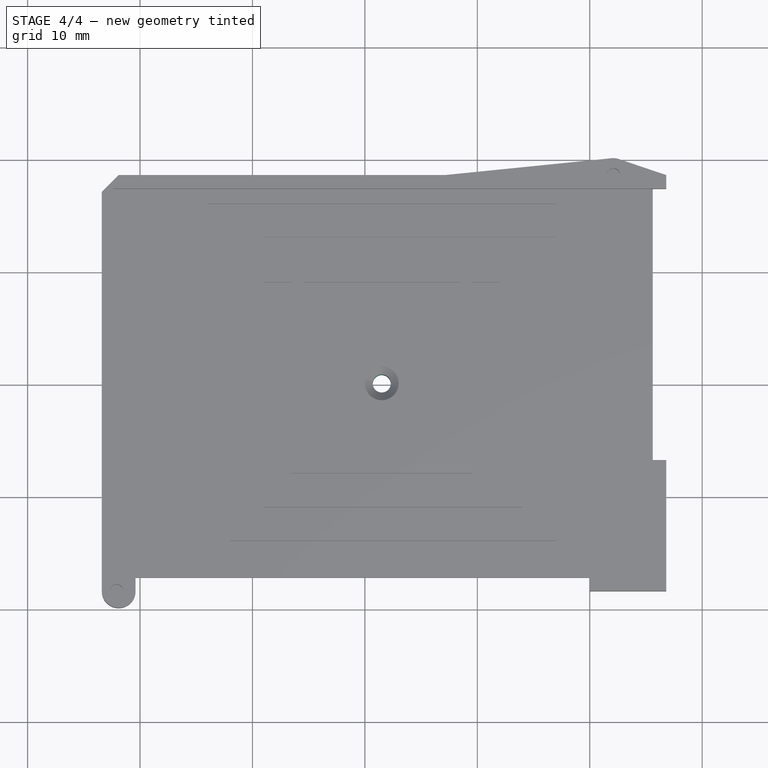
[diagram: stage 4 of 4 — top view after this stage's code; geometry added in this stage tinted green]
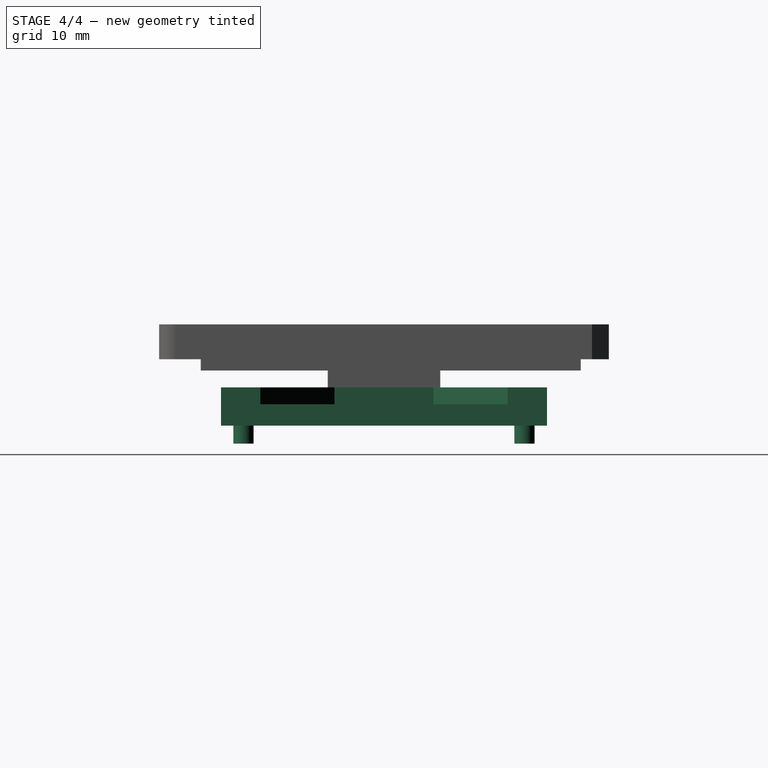
[diagram: stage 4 of 4 — right view after this stage's code; geometry added in this stage tinted green]
FEATURE [Sketcher::SketchObject] Sketch029
  FullyConstrained = true
  MapMode = 5
  Support = -> [XY_Plane002]
  sketch-geometry (18):
    g0: LineSegment StartX=-19.5 StartY=-14.5 StartZ=0 EndX=-19.5 EndY=14.5 EndZ=0
    g1: LineSegment StartX=-19.5 StartY=14.5 StartZ=0 EndX=19.5 EndY=14.5 EndZ=0
    g2: LineSegment StartX=19.5 StartY=-11 StartZ=0 EndX=19.5 EndY=-14.5 EndZ=0
    g3: LineSegment StartX=19.5 StartY=-14.5 StartZ=0 EndX=-19.5 EndY=-14.5 EndZ=0
    g4: GeomPoint X=0 Y=0 Z=0
    g5: LineSegment StartX=-16 StartY=-11 StartZ=0 EndX=-16 EndY=11 EndZ=0
    g6: LineSegment StartX=-16 StartY=11 StartZ=0 EndX=19.5 EndY=11 EndZ=0
    g7: GeomPoint X=0 Y=0 Z=0
    g8: Circle CenterX=-17.5 CenterY=12.5 CenterZ=0 NormalX=0 NormalY=0 NormalZ=1 AngleXU=0 Radius=1
    g9: Circle CenterX=-17.5 CenterY=-12.5 CenterZ=0 NormalX=0 NormalY=0 NormalZ=1 AngleXU=0 Radius=1
    g10: Circle CenterX=17.5 CenterY=-12.5 CenterZ=0 NormalX=0 NormalY=0 NormalZ=1 AngleXU=0 Radius=1
    g11: LineSegment StartX=19.5 StartY=14.5 StartZ=0 EndX=19.5 EndY=11 EndZ=0
    g12: LineSegment StartX=-16 StartY=-11 StartZ=0 EndX=19.5 EndY=-11 EndZ=0
    g13: LineSegment StartX=-17.5 StartY=-12.5 StartZ=0 EndX=-16 EndY=-11 EndZ=0
    g14: LineSegment StartX=-17.5 StartY=-12.5 StartZ=0 EndX=-19.5 EndY=-14.5 EndZ=0
    g15: LineSegment StartX=-16 StartY=11 StartZ=0 EndX=-17.5 EndY=12.5 EndZ=0
    g16: LineSegment StartX=-17.5 StartY=12.5 StartZ=0 EndX=-19.5 EndY=14.5 EndZ=0
    g17: LineSegment StartX=17.5 StartY=-12.5 StartZ=0 EndX=19.5 EndY=-14.5 EndZ=0
  constraints (45):
    c: Coincident(g0,g1)
    c: Coincident(g2,g3)
    c: Coincident(g3,g0)
    c: Horizontal(g1)
    c: Horizontal(g3)
    c: Vertical(g0)
    c: Vertical(g2)
    c: Coincident(g4,g-1)
    c: Coincident(g5,g6)
    c: Horizontal(g6)
    c: Vertical(g5)
    c: Coincident(g7,g4)
    c: Equal(g8,g9)
    c: Equal(g9,g10)
    c: Diameter(g8) = 2
    c: Symmetric(g8,g9,g-1)
    c: Symmetric(g10,g9,g-2)
    c: DistanceY(g9,g8) = 25
    c: DistanceX(g9,g10) = 35
    c: Vertical(g11)
    c: Coincident(g6,g11)
    c: Coincident(g1,g11)
    c: Equal(g11,g2)
    c: Coincident(g12,g5)
    c: Coincident(g12,g2)
    c: Horizontal(g12)
    c: Coincident(g13,g9)
    c: Coincident(g13,g5)
    c: Coincident(g14,g9)
    c: Coincident(g14,g0)
    c: Coincident(g15,g5)
    c: Coincident(g15,g8)
    c: Coincident(g16,g8)
    c: Coincident(g16,g0)
    c: Coincident(g17,g10)
    c: Coincident(g17,g2)
    c: DistanceX(g9,g5) = 1.5
    c: DistanceY(g0,g9) = 2
    c: DistanceX(g0,g9) = 2
    c: DistanceY(g9,g5) = 1.5
    c: Equal(g13,g15)
    c: Equal(g17,g14)
    c: Vertical(g6,g2)
    c: DistanceY(g5,g5) = 22
    c: DistanceX(g6,g6) = 35.5
FEATURE [PartDesign::Pad] Pad019
  Direction = (0,0,1)
  Length = 3.4
  Length2 = 10
  Profile = -> Sketch029
  ReferenceAxis = -> Sketch029 [N_Axis]
  Type = 0
FEATURE [PartDesign::Pad] Pad020
  BaseFeature = -> Pad019
  Direction = (0,0,1)
  Length = 1.6
  Length2 = 10
  Profile = -> Sketch
  ReferenceAxis = -> Sketch [N_Axis]
  Reversed = true
  Type = 0
FEATURE [Sketcher::SketchObject] Sketch034
  FullyConstrained = true
  MapMode = 5
  Placement = pos=(0,0,7.1) rot=(0,0,1;0rad)
  Support = -> [DatumPlane]
  sketch-geometry (1):
    g0: Circle CenterX=1.5 CenterY=0 CenterZ=0 NormalX=0 NormalY=0 NormalZ=1 AngleXU=0 Radius=1
  constraints (3):
    c: Diameter(g0) = 2
    c: PointOnObject(g0,g-1)
    c: DistanceX(g-1,g0) = 1.5
FEATURE [PartDesign::Plane] DatumPlane003
  AttachmentOffset = pos=(0,0,3.4) rot=(0,0,1;0rad)
  Length = 60
  MapMode = 5
  Placement = pos=(0,0,3.4) rot=(0,0,1;0rad)
  ResizeMode = 0
  Support = -> [XY_Plane002]
  Width = 60
FEATURE [Sketcher::SketchObject] Sketch036
  FullyConstrained = true
  MapMode = 5
  Placement = pos=(0,0,3.4) rot=(0,0,1;0rad)
  Support = -> [DatumPlane003]
  sketch-geometry (6):
    g0: LineSegment StartX=-4.01215 StartY=-2.75 StartZ=0 EndX=-4.01215 EndY=2.75 EndZ=0
    g1: LineSegment StartX=-4.01215 StartY=2.75 StartZ=0 EndX=7.01215 EndY=2.75 EndZ=0
    g2: LineSegment StartX=7.01215 StartY=2.75 StartZ=0 EndX=7.01215 EndY=-2.75 EndZ=0
    g3: LineSegment StartX=7.01215 StartY=-2.75 StartZ=0 EndX=-4.01215 EndY=-2.75 EndZ=0
    g4: LineSegment StartX=-4.01215 StartY=0 StartZ=0 EndX=7.01215 EndY=0 EndZ=0
    g5: GeomPoint X=1.5 Y=0 Z=0
  constraints (16):
    c: Coincident(g0,g1)
    c: Coincident(g1,g2)
    c: Coincident(g2,g3)
    c: Coincident(g3,g0)
    c: Horizontal(g1)
    c: Horizontal(g3)
    c: Vertical(g0)
    c: Vertical(g2)
    c: DistanceY(g2,g2) = 5.5
    c: DistanceX(g1,g1) = 11.0243
    c: PointOnObject(g4,g0)
    c: Horizontal(g4)
    c: Symmetric(g1,g2,g4)
    c: Symmetric(g4,g4,g5)
    c: PointOnObject(g5,g-1)
    c: DistanceX(g-1,g5) = 1.5
FEATURE [Sketcher::SketchObject] Sketch037
  FullyConstrained = true
  MapMode = 5
  Placement = pos=(0,0,3.4) rot=(0,0,1;0rad)
  Support = -> [DatumPlane003]
  sketch-geometry (35):
    g0: LineSegment StartX=19.5 StartY=11 StartZ=0 EndX=-16 EndY=11 EndZ=0
    g1: LineSegment StartX=-16 StartY=11 StartZ=0 EndX=-16 EndY=-11 EndZ=0
    g2: LineSegment StartX=-16 StartY=-11 StartZ=0 EndX=19.5 EndY=-11 EndZ=0
    g3: LineSegment StartX=-16.5 StartY=11 StartZ=0 EndX=-6.26213 EndY=4.40525 EndZ=0
    g4: LineSegment StartX=-14.6534 StartY=11 StartZ=0 EndX=-5.33882 EndY=5 EndZ=0
    g5: LineSegment StartX=-16.5 StartY=-11 StartZ=0 EndX=-6.26213 EndY=-4.40525 EndZ=0
    g6: LineSegment StartX=-14.6534 StartY=-11 StartZ=0 EndX=-5.33882 EndY=-5 EndZ=0
    g7: LineSegment StartX=-5.33882 StartY=5 StartZ=0 EndX=8.33882 EndY=5 EndZ=0
    g8: LineSegment StartX=9.26213 StartY=4.40525 StartZ=0 EndX=9.26213 EndY=-4.40525 EndZ=0
    g9: LineSegment StartX=8.33882 StartY=-5 StartZ=0 EndX=-5.33882 EndY=-5 EndZ=0
    g10: LineSegment StartX=-6.26213 StartY=4.40525 StartZ=0 EndX=-6.26213 EndY=-4.40525 EndZ=0
    g11: LineSegment StartX=-15.5767 StartY=-11 StartZ=0 EndX=18.5767 EndY=11 EndZ=0
    g12: LineSegment StartX=-15.5767 StartY=11 StartZ=0 EndX=18.5767 EndY=-11 EndZ=0
    g13: LineSegment StartX=19.5 StartY=11 StartZ=0 EndX=9.26213 EndY=4.40525 EndZ=0
    g14: LineSegment StartX=17.6534 StartY=11 StartZ=0 EndX=8.33882 EndY=5 EndZ=0
    g15: LineSegment StartX=17.6534 StartY=-11 StartZ=0 EndX=8.33882 EndY=-5 EndZ=0
    g16: LineSegment StartX=19.5 StartY=-11 StartZ=0 EndX=9.26213 EndY=-4.40525 EndZ=0
    g17: LineSegment StartX=-16.5 StartY=-11 StartZ=0 EndX=-14.6534 EndY=-11 EndZ=0
    g18: LineSegment StartX=19.5 StartY=-11 StartZ=0 EndX=17.6534 EndY=-11 EndZ=0
    g19: LineSegment StartX=17.6534 StartY=11 StartZ=0 EndX=19.5 EndY=11 EndZ=0
    g20: LineSegment StartX=-6.26213 StartY=4.40525 StartZ=0 EndX=-6.26213 EndY=5 EndZ=0
    g21: LineSegment StartX=-6.26213 StartY=5 StartZ=0 EndX=-5.33882 EndY=5 EndZ=0
    g22: LineSegment StartX=-15.1949 StartY=-10.1593 StartZ=0 EndX=-14.6534 EndY=-11 EndZ=0
    g23: LineSegment StartX=-5.33882 StartY=-5 StartZ=0 EndX=9.26213 EndY=4.40525 EndZ=0
    g24: LineSegment StartX=8.33882 StartY=-5 StartZ=0 EndX=-6.26213 EndY=4.40525 EndZ=0
    g25: LineSegment StartX=-5.33882 StartY=5 StartZ=0 EndX=9.26213 EndY=-4.40525 EndZ=0
    g26: LineSegment StartX=-6.26213 StartY=-4.40525 StartZ=0 EndX=8.33882 EndY=5 EndZ=0
    g27: LineSegment StartX=-4.26213 StartY=-3 StartZ=0 EndX=-4.26213 EndY=3 EndZ=0
    g28: LineSegment StartX=-4.26213 StartY=3 StartZ=0 EndX=7.26213 EndY=3 EndZ=0
    g29: LineSegment StartX=7.26213 StartY=3 StartZ=0 EndX=7.26213 EndY=-3 EndZ=0
    g30: LineSegment StartX=7.26213 StartY=-3 StartZ=0 EndX=-4.26213 EndY=-3 EndZ=0
    g31: GeomPoint X=0 Y=0 Z=0
    g32: GeomPoint X=1.5 Y=0 Z=0
    g33: LineSegment StartX=7.26213 StartY=0 StartZ=0 EndX=-4.26213 EndY=0 EndZ=0
    g34: LineSegment StartX=-16.5 StartY=11 StartZ=0 EndX=-14.6534 EndY=11 EndZ=0
  constraints (97):
    c: Horizontal(g0)
    c: Horizontal(g2)
    c: Vertical(g0,g2)
    c: Symmetric(g0,g1,g-1)
    c: DistanceY(g1,g1) = 22
    c: DistanceX(g0,g0) = 35.5
    c: DistanceX(g1,g-1) = 16
    c: Coincident(g7,g4)
    c: Horizontal(g7)
    c: Coincident(g9,g6)
    c: Coincident(g10,g3)
    c: Coincident(g10,g5)
    c: Horizontal(g9)
    c: Vertical(g8)
    c: PointOnObject(g12,g2)
    c: PointOnObject(g14,g0)
    c: PointOnObject(g15,g2)
    c: Coincident(g14,g7)
    c: Coincident(g16,g8)
    c: Coincident(g9,g15)
    c: Coincident(g13,g8)
    c: Parallel(g14,g13)
    c: Parallel(g13,g6)
    c: Parallel(g6,g5)
    c: Parallel(g5,g11)
    c: Parallel(g15,g16)
    c: Parallel(g16,g4)
    c: Parallel(g4,g3)
    c: Parallel(g3,g12)
    c: Symmetric(g7,g9,g-1)
    c: Coincident(g17,g6)
    c: Coincident(g18,g16)
    c: Coincident(g18,g15)
    c: Coincident(g19,g14)
    c: Coincident(g13,g19)
    c: Coincident(g20,g3)
    c: PointOnObject(g20,g12)
    c: Coincident(g21,g4)
    c: Horizontal(g21)
    c: Vertical(g20)
    c: Horizontal(g8,g3)
    c: Symmetric(g3,g5,g-1)
    c: Horizontal(g8,g5)
    c: PointOnObject(g22,g5)
    c: Distance(g22) = 1
    c: Symmetric(g22,g22,g11)
    c: Coincident(g23,g6)
    c: Coincident(g23,g8)
    c: Coincident(g24,g9)
    c: Coincident(g24,g3)
    c: Coincident(g25,g4)
    c: Coincident(g25,g8)
    c: Coincident(g26,g5)
    c: Coincident(g26,g7)
    c: Parallel(g23,g26)
    c: Parallel(g26,g11)
    c: Parallel(g24,g25)
    c: DistanceY(g9,g7) = 10
    c: Coincident(g22,g6)
    c: Coincident(g27,g28)
    c: Coincident(g28,g29)
    c: Coincident(g29,g30)
    c: Coincident(g30,g27)
    c: Horizontal(g28)
    c: Horizontal(g30)
    c: Vertical(g27)
    c: Coincident(g31,g-1)
    c: DistanceX(g28,g8) = 2
    c: DistanceY(g28,g7) = 2
    c: DistanceX(g28,g28) = 11.5243
    c: DistanceY(g29,g29) = 6
    c: DistanceX(g3,g8) = 15.5243
    c: PointOnObject(g32,g12)
    c: PointOnObject(g32,g11)
    c: PointOnObject(g32,g-1)
    c: DistanceX(g31,g32) = 1.5
    c: Symmetric(g28,g29,g-1)
    c: PointOnObject(g33,g29)
    c: PointOnObject(g33,g27)
    c: Horizontal(g33)
    c: Symmetric(g33,g33,g32)
    c: Horizontal(g17)
    c: Coincident(g0,g1)
    c: Coincident(g2,g1)
    c: PointOnObject(g11,g2)
    c: PointOnObject(g12,g0)
    c: Coincident(g13,g0)
    c: PointOnObject(g11,g19)
    c: Coincident(g16,g2)
    c: PointOnObject(g6,g2)
    c: PointOnObject(g5,g2)
    c: PointOnObject(g17,g5)
    c: PointOnObject(g4,g0)
    c: PointOnObject(g3,g0)
    c: Coincident(g34,g3)
    c: Coincident(g34,g4)
    c: Coincident(g20,g21)
FEATURE [PartDesign::Pad] Pad021
  BaseFeature = -> Pad020
  Direction = (0,0,1)
  Length = 1.5
  Length2 = 10
  Profile = -> Sketch037
  ReferenceAxis = -> Sketch037 [N_Axis]
  Refine = true
  Reversed = true
  Type = 0
FEATURE [Sketcher::SketchObject] Sketch040
  FullyConstrained = true
  MapMode = 5
  Placement = pos=(0,0,5.9) rot=(0,0,1;0rad)
  Support = -> [DatumPlane002]
  sketch-geometry (1):
    g0: Circle CenterX=1.5 CenterY=0 CenterZ=0 NormalX=0 NormalY=0 NormalZ=1 AngleXU=0 Radius=0.8
  constraints (3):
    c: Diameter(g0) = 1.6
    c: PointOnObject(g0,g-1)
    c: DistanceX(g-1,g0) = 1.5
FEATURE [PartDesign::Pocket] Pocket007
  BaseFeature = -> Pad024
  Direction = (0,0,-1)
  Length = 5
  Length2 = 5
  Placement = pos=(0,0,3.4) rot=(0,0,1;0rad)
  Profile = -> Sketch040
  ReferenceAxis = -> Sketch040 [N_Axis]
  Type = 0
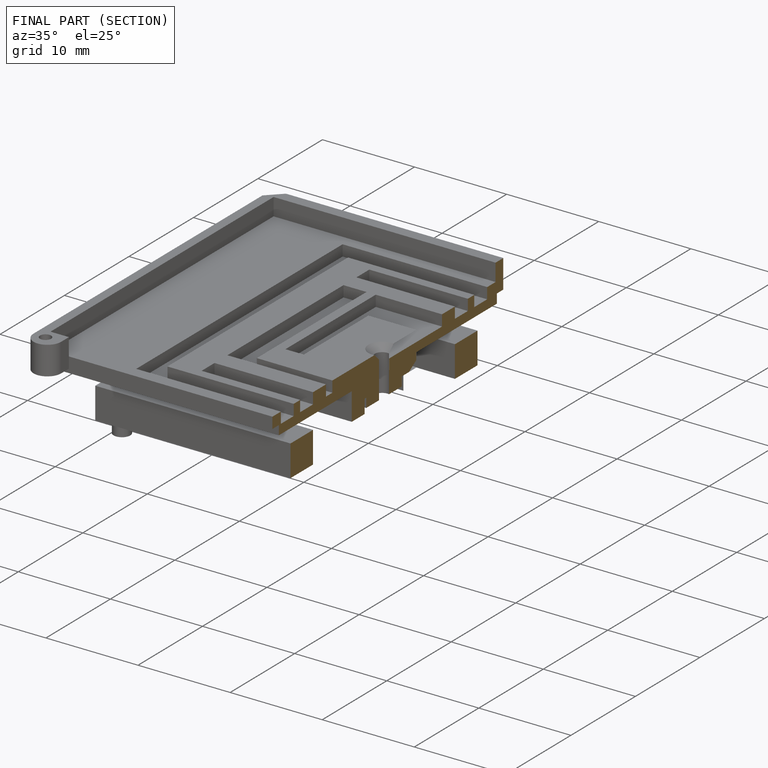
[diagram: finished part — half-section view (interior)]
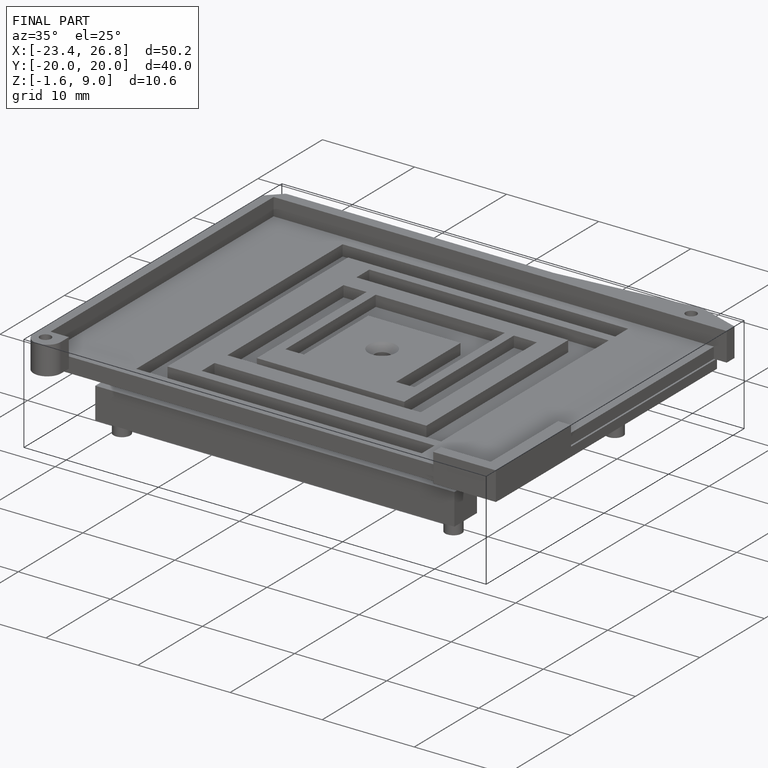
[diagram: finished part — iso view with bounding-box wireframe]
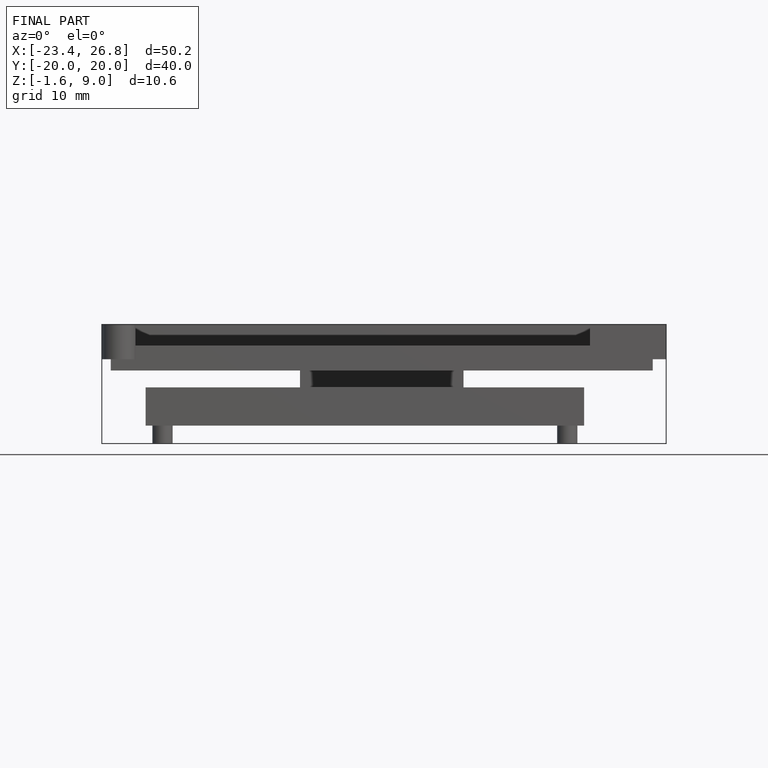
[diagram: finished part — front view with bounding-box wireframe]
